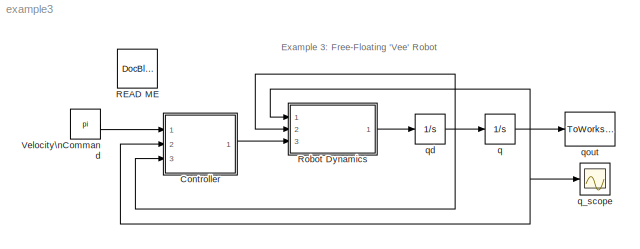
MODEL example3
KIND model
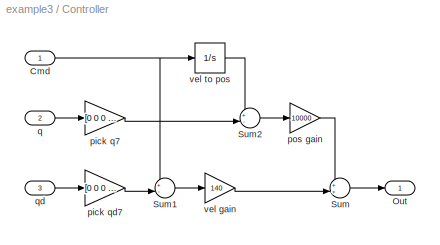
BLOCK [SubSystem] Controller
  FunctionWithSeparateData = off
  MaskHideContents = off
  MinAlgLoopOccurrences = off
  Opaque = off
  Ports = [3, 1]
  PropExecContextOutsideSubsystem = off
  RTWSystemCode = Auto
  RequestExecContextInheritance = off
BLOCK [Inport] Controller/Cmd
  IconDisplay = Port number
  OutDataType = sfix(16)
  OutScaling = 2^0
BLOCK [Outport] Controller/Out
  IconDisplay = Port number
  OutDataType = sfix(16)
  OutScaling = 2^0
BLOCK [Sum] Controller/Sum
  IconShape = round
  InputSameDT = off
  Inputs = ++|
  OutDataType = sfix(16)
  OutDataTypeMode = Inherit via internal rule
  OutDataTypeStr = Inherit: Inherit via internal rule
  OutScaling = 2^0
  Ports = [2, 1]
  SaturateOnIntegerOverflow = off
BLOCK [Sum] Controller/Sum1
  IconShape = round
  InputSameDT = off
  Inputs = +-|
  OutDataType = sfix(16)
  OutDataTypeMode = Inherit via internal rule
  OutDataTypeStr = Inherit: Inherit via internal rule
  OutScaling = 2^0
  Ports = [2, 1]
  SaturateOnIntegerOverflow = off
BLOCK [Sum] Controller/Sum2
  IconShape = round
  InputSameDT = off
  Inputs = +-|
  OutDataType = sfix(16)
  OutDataTypeMode = Inherit via internal rule
  OutDataTypeStr = Inherit: Inherit via internal rule
  OutScaling = 2^0
  Ports = [2, 1]
  SaturateOnIntegerOverflow = off
BLOCK [Gain] Controller/pick q7
  Gain = [0 0 0 0 0 0 1]
  Multiplication = Matrix(K*u)
  OutDataType = sfix(16)
  OutDataTypeMode = Inherit via internal rule
  OutDataTypeStr = Inherit: Inherit via internal rule
  OutScaling = 2^0
  ParamDataTypeStr = Inherit: Inherit via internal rule
  ParameterDataType = sfix(16)
  ParameterDataTypeMode = Inherit via internal rule
  ParameterScaling = 2^0
  SaturateOnIntegerOverflow = off
BLOCK [Gain] Controller/pick qd7
  Gain = [0 0 0 0 0 0 1]
  Multiplication = Matrix(K*u)
  OutDataType = sfix(16)
  OutDataTypeMode = Inherit via internal rule
  OutDataTypeStr = Inherit: Inherit via internal rule
  OutScaling = 2^0
  ParamDataTypeStr = Inherit: Inherit via internal rule
  ParameterDataType = sfix(16)
  ParameterDataTypeMode = Inherit via internal rule
  ParameterScaling = 2^0
  SaturateOnIntegerOverflow = off
BLOCK [Gain] Controller/pos gain
  Gain = 10000
  OutDataType = sfix(16)
  OutDataTypeMode = Inherit via internal rule
  OutDataTypeStr = Inherit: Inherit via internal rule
  OutScaling = 2^0
  ParamDataTypeStr = Inherit: Inherit via internal rule
  ParameterDataType = sfix(16)
  ParameterDataTypeMode = Inherit via internal rule
  ParameterScaling = 2^0
  SaturateOnIntegerOverflow = off
BLOCK [Inport] Controller/q
  IconDisplay = Port number
  OutDataType = sfix(16)
  OutScaling = 2^0
  Port = 2
BLOCK [Inport] Controller/qd
  IconDisplay = Port number
  OutDataType = sfix(16)
  OutScaling = 2^0
  Port = 3
BLOCK [Gain] Controller/vel gain
  Gain = 140
  OutDataType = sfix(16)
  OutDataTypeMode = Inherit via internal rule
  OutDataTypeStr = Inherit: Inherit via internal rule
  OutScaling = 2^0
  ParamDataTypeStr = Inherit: Inherit via internal rule
  ParameterDataType = sfix(16)
  ParameterDataTypeMode = Inherit via internal rule
  ParameterScaling = 2^0
  SaturateOnIntegerOverflow = off
BLOCK [Integrator] Controller/vel to pos
  Ports = [1, 1]
BLOCK [Reference] READ ME  REF=simulink/Model-Wide\nUtilities/DocBlock
  DocumentType = Text
  FunctionWithSeparateData = off
  Ports = []
  RTWMemSecDataConstants = Inherit from model
  RTWMemSecDataInternal = Inherit from model
  RTWMemSecDataParameters = Inherit from model
  RTWMemSecFuncExecute = Inherit from model
  RTWMemSecFuncInitTerm = Inherit from model
  ShowPortLabels = FromPortIcon
  SourceBlock = simulink/Model-Wide\nUtilities/DocBlock
  SourceType = DocBlock
  SystemSampleTime = -1
  UserData = DataTag0
  UserDataPersistent = on
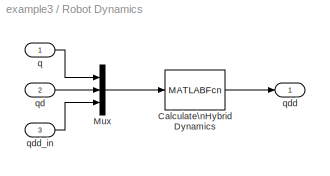
BLOCK [SubSystem] Robot Dynamics
  FunctionWithSeparateData = off
  MaskHideContents = off
  MinAlgLoopOccurrences = off
  Opaque = off
  Ports = [3, 1]
  PropExecContextOutsideSubsystem = off
  RTWSystemCode = Auto
  RequestExecContextInheritance = off
BLOCK [MATLABFcn] Robot Dynamics/Calculate\nHybrid Dynamics
  MATLABFcn = HD( vee(1), [1 1 1 1 1 1 0], u(1:7), u(8:14), [zeros(6,1);u(15)], zeros(7,1) )
  Output1D = off
  OutputDimensions = [7 1]
  OutputSignalType = real
  Ports = [1, 1]
BLOCK [Mux] Robot Dynamics/Mux
  DisplayOption = bar
  Inputs = 3
  Ports = [3, 1]
BLOCK [Inport] Robot Dynamics/q
  IconDisplay = Port number
  OutDataType = sfix(16)
  OutScaling = 2^0
BLOCK [Inport] Robot Dynamics/qd
  IconDisplay = Port number
  OutDataType = sfix(16)
  OutScaling = 2^0
  Port = 2
BLOCK [Outport] Robot Dynamics/qdd
  IconDisplay = Port number
  OutDataType = sfix(16)
  OutScaling = 2^0
BLOCK [Inport] Robot Dynamics/qdd_in
  IconDisplay = Port number
  OutDataType = sfix(16)
  OutScaling = 2^0
  Port = 3
BLOCK [Constant] Velocity\nCommand
  OutDataType = sfix(16)
  OutScaling = 2^0
  Value = pi
BLOCK [Integrator] q
  Ports = [1, 1]
BLOCK [Scope] q_scope
  DataFormat = StructureWithTime
  Floating = off
  LimitDataPoints = off
  NumInputPorts = 1
  Ports = [1]
  SampleTime = 0
  YMax = 2
  YMin = -2
BLOCK [Integrator] qd
  Ports = [1, 1]
BLOCK [ToWorkspace] qout
  MaxDataPoints = inf
  SampleTime = -1
  SaveFormat = Array
  VariableName = qout
ANNOTATION (root): Example 3: Free-Floating 'Vee' Robot
NET Controller/Cmd:1 -> Controller/Sum1:1, Controller/vel to pos:1
LINE Controller/Sum1:1 -> Controller/vel gain:1
LINE Controller/Sum2:1 -> Controller/pos gain:1
LINE Controller/Sum:1 -> Controller/Out:1
LINE Controller/pick q7:1 -> Controller/Sum2:2
LINE Controller/pick qd7:1 -> Controller/Sum1:2
LINE Controller/pos gain:1 -> Controller/Sum:1
LINE Controller/q:1 -> Controller/pick q7:1
LINE Controller/qd:1 -> Controller/pick qd7:1
LINE Controller/vel gain:1 -> Controller/Sum:2
LINE Controller/vel to pos:1 -> Controller/Sum2:1
LINE Controller:1 -> Robot Dynamics:3
LINE Robot Dynamics/Calculate\nHybrid Dynamics:1 -> Robot Dynamics/qdd:1
LINE Robot Dynamics/Mux:1 -> Robot Dynamics/Calculate\nHybrid Dynamics:1
LINE Robot Dynamics/q:1 -> Robot Dynamics/Mux:1
LINE Robot Dynamics/qd:1 -> Robot Dynamics/Mux:2
LINE Robot Dynamics/qdd_in:1 -> Robot Dynamics/Mux:3
LINE Robot Dynamics:1 -> qd:1
LINE Velocity\nCommand:1 -> Controller:1
NET q:1 -> Controller:2, Robot Dynamics:1, q_scope:1, qout:1
NET qd:1 -> Controller:3, Robot Dynamics:2, q:1
note: NET lines group one-source signal fan-out (src -> all destinations, sorted); 1:1 wires keep LINE
